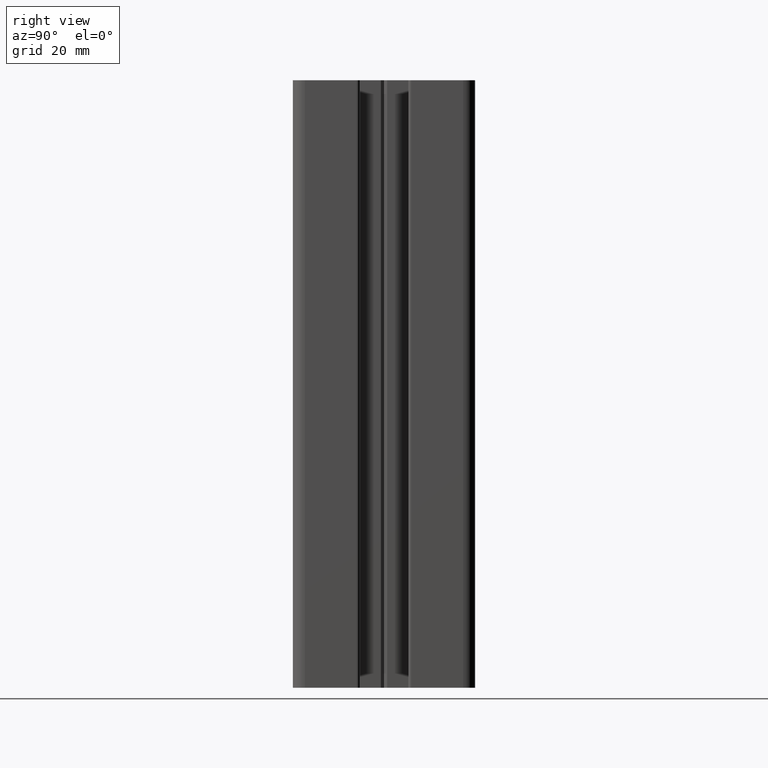
[diagram: clean part render]
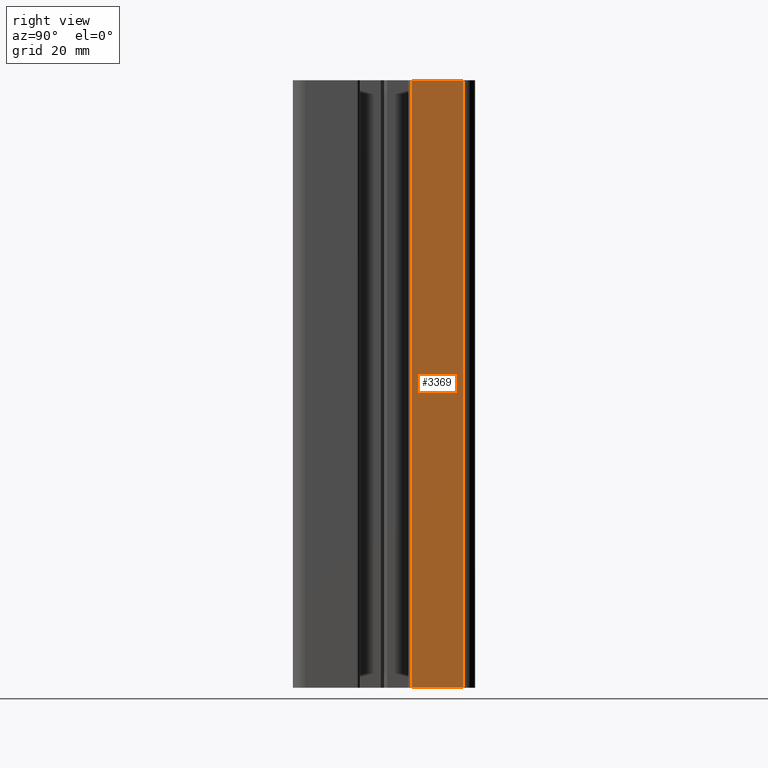
[diagram: same view with one face highlighted and labeled with its STEP entity id]
A machine part, right view. The second image highlights one B-rep face of the part: STEP entity #3369.
In plain terms, the highlighted planar face has unit normal (1, -0, 0).
Its self-contained STEP definition (entity closure, byte-faithful):
#347=FACE_OUTER_BOUND('',#515,.T.);
#515=EDGE_LOOP('',(#2735,#2736,#2737,#2738));
#763=LINE('',#5144,#1145);
#906=LINE('',#5529,#1288);
#907=LINE('',#5531,#1289);
#908=LINE('',#5532,#1290);
#1145=VECTOR('',#4165,100.);
#1288=VECTOR('',#4534,8.50000432697441);
#1289=VECTOR('',#4535,100.);
#1290=VECTOR('',#4536,8.50000432697441);
#1493=VERTEX_POINT('',#5140);
#1494=VERTEX_POINT('',#5142);
#1623=VERTEX_POINT('',#5528);
#1624=VERTEX_POINT('',#5530);
#1907=EDGE_CURVE('',#1493,#1494,#763,.T.);
#2098=EDGE_CURVE('',#1623,#1494,#906,.T.);
#2099=EDGE_CURVE('',#1623,#1624,#907,.T.);
#2100=EDGE_CURVE('',#1624,#1493,#908,.T.);
#2735=ORIENTED_EDGE('',*,*,#1907,.T.);
#2736=ORIENTED_EDGE('',*,*,#2098,.F.);
#2737=ORIENTED_EDGE('',*,*,#2099,.T.);
#2738=ORIENTED_EDGE('',*,*,#2100,.T.);
#3207=PLANE('',#3637);
#3369=ADVANCED_FACE('',(#347),#3207,.T.);
#3637=AXIS2_PLACEMENT_3D('',#5527,#4532,#4533);
#4165=DIRECTION('',(0.,0.,-1.));
#4532=DIRECTION('center_axis',(1.,-1.19562479575017E-15,0.));
#4533=DIRECTION('ref_axis',(1.06581410364015E-15,1.,0.));
#4534=DIRECTION('',(-1.19562479575017E-15,-1.,0.));
#4535=DIRECTION('',(0.,0.,1.));
#4536=DIRECTION('',(-1.19562479575017E-15,-1.,0.));
#5140=CARTESIAN_POINT('',(29.99999667,4.49999900302554,100.));
#5142=CARTESIAN_POINT('',(29.99999667,4.49999900302554,0.));
#5144=CARTESIAN_POINT('',(29.99999667,4.49999900302552,0.));
#5527=CARTESIAN_POINT('Origin',(29.99999667,-12.99999667,0.));
#5528=CARTESIAN_POINT('',(29.99999667,13.00000333,0.));
#5529=CARTESIAN_POINT('',(29.99999667,-6.49999667000006,0.));
#5530=CARTESIAN_POINT('',(29.99999667,13.00000333,100.));
#5531=CARTESIAN_POINT('',(29.99999667,13.00000333,0.));
#5532=CARTESIAN_POINT('',(29.99999667,-6.49999667000006,100.));